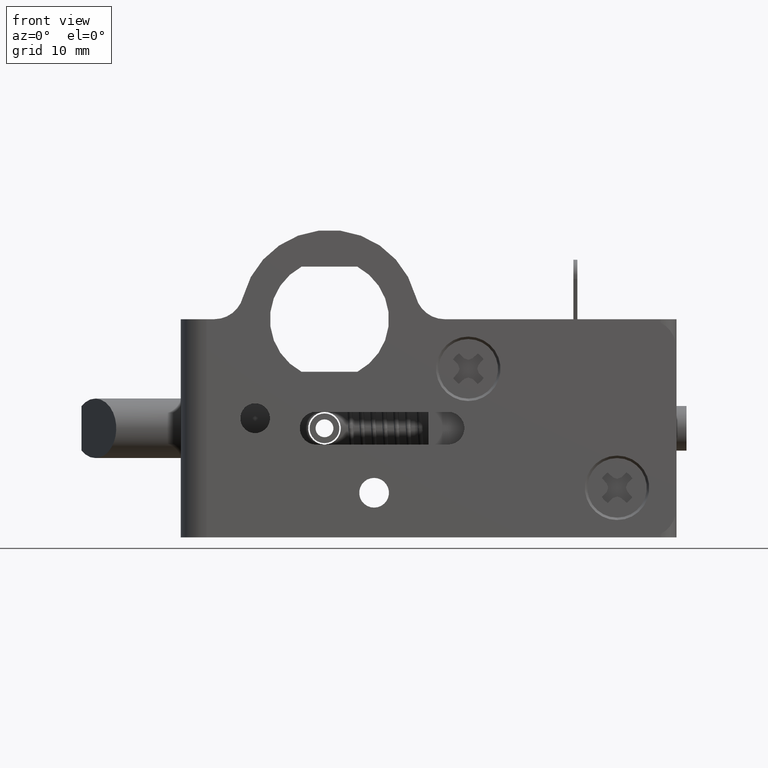
[diagram: clean part render]
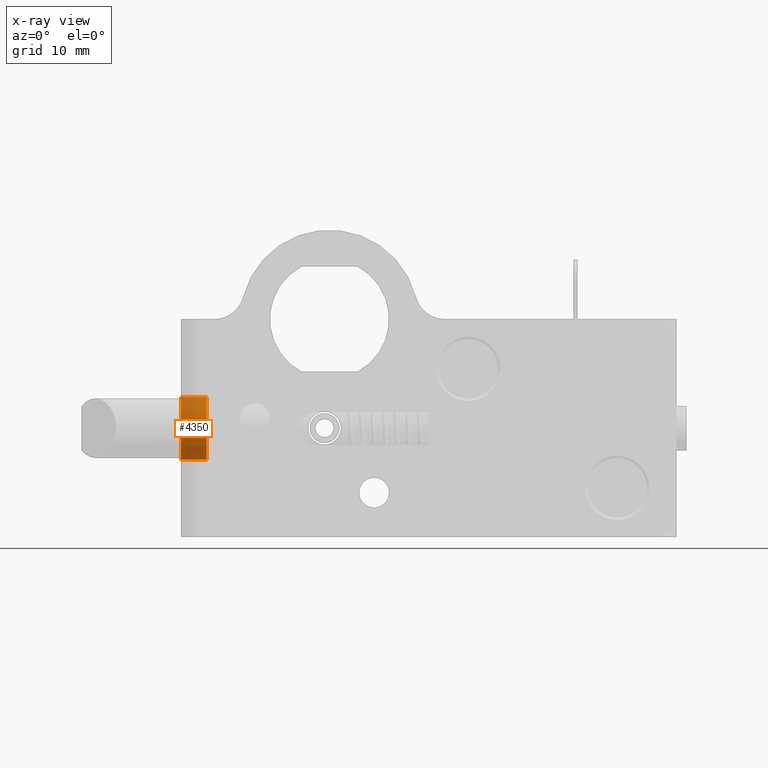
[diagram: x-ray — body ghosted, one internal face saturated and labeled with its STEP entity id]
A machine part, front view, then the same camera in x-ray: the body is ghosted and one INTERNAL B-rep face — a face not visible from any outside direction — is saturated and labeled: STEP entity #4350.
In plain terms, the highlighted cylindrical surface (edge-blend (fillet) strip) has radius 3.15 mm, axis along (-1, 0, 0).
Its self-contained STEP definition (entity closure, byte-faithful):
#576 = DIRECTION ( 'NONE',  ( 0.0000000000000000000, 0.0000000000000000000, 1.000000000000000000 ) ) ;
#725 = CYLINDRICAL_SURFACE ( 'NONE', #5451, 3.149999999999999900 ) ;
#873 = ORIENTED_EDGE ( 'NONE', *, *, #3541, .T. ) ;
#882 = ORIENTED_EDGE ( 'NONE', *, *, #6096, .T. ) ;
#1523 = CARTESIAN_POINT ( 'NONE',  ( -14.99999200000002000, 15.00000000000000000, -7.849999999999999600 ) ) ;
#1693 = DIRECTION ( 'NONE',  ( 0.0000000000000000000, 0.0000000000000000000, 1.000000000000000000 ) ) ;
#2578 = DIRECTION ( 'NONE',  ( -1.000000000000000000, 0.0000000000000000000, 0.0000000000000000000 ) ) ;
#2634 = VERTEX_POINT ( 'NONE', #8452 ) ;
#3242 = CARTESIAN_POINT ( 'NONE',  ( 985.0000079999999800, 15.00000000000000000, -14.14999999999999900 ) ) ;
#3267 = EDGE_LOOP ( 'NONE', ( #9820, #882, #873, #8365 ) ) ;
#3268 = CIRCLE ( 'NONE', #9862, 3.149999999999999900 ) ;
#3278 = CARTESIAN_POINT ( 'NONE',  ( -12.39999200000008100, 15.00000000000000000, -14.14999999999999900 ) ) ;
#3394 = VECTOR ( 'NONE', #8934, 1000.000000000000000 ) ;
#3541 = EDGE_CURVE ( 'NONE', #7963, #3819, #3268, .T. ) ;
#3819 = VERTEX_POINT ( 'NONE', #1523 ) ;
#4350 = ADVANCED_FACE ( 'NONE', ( #7167 ), #725, .F. ) ;
#4603 = CARTESIAN_POINT ( 'NONE',  ( -14.99999200000002000, 15.00000000000000000, -14.14999999999999900 ) ) ;
#5222 = VECTOR ( 'NONE', #9301, 1000.000000000000000 ) ;
#5388 = DIRECTION ( 'NONE',  ( -1.000000000000000000, 0.0000000000000000000, 0.0000000000000000000 ) ) ;
#5390 = AXIS2_PLACEMENT_3D ( 'NONE', #10298, #5388, #576 ) ;
#5451 = AXIS2_PLACEMENT_3D ( 'NONE', #7350, #6503, #1693 ) ;
#5474 = LINE ( 'NONE', #5638, #5222 ) ;
#5638 = CARTESIAN_POINT ( 'NONE',  ( 985.0000079999999800, 15.00000000000000000, -7.849999999999999600 ) ) ;
#6096 = EDGE_CURVE ( 'NONE', #6723, #7963, #9643, .T. ) ;
#6503 = DIRECTION ( 'NONE',  ( -1.000000000000000000, 0.0000000000000000000, 0.0000000000000000000 ) ) ;
#6723 = VERTEX_POINT ( 'NONE', #3278 ) ;
#7167 = FACE_OUTER_BOUND ( 'NONE', #3267, .T. ) ;
#7350 = CARTESIAN_POINT ( 'NONE',  ( 985.0000079999999800, 15.00000000000000000, -11.00000000000000000 ) ) ;
#7428 = CARTESIAN_POINT ( 'NONE',  ( -14.99999200000002000, 15.00000000000000000, -11.00000000000000000 ) ) ;
#7963 = VERTEX_POINT ( 'NONE', #4603 ) ;
#8256 = DIRECTION ( 'NONE',  ( 0.0000000000000000000, 0.0000000000000000000, 1.000000000000000000 ) ) ;
#8365 = ORIENTED_EDGE ( 'NONE', *, *, #9578, .F. ) ;
#8452 = CARTESIAN_POINT ( 'NONE',  ( -12.39999200000008100, 15.00000000000000000, -7.849999999999999600 ) ) ;
#8934 = DIRECTION ( 'NONE',  ( -1.000000000000000000, 0.0000000000000000000, 0.0000000000000000000 ) ) ;
#9301 = DIRECTION ( 'NONE',  ( -1.000000000000000000, 0.0000000000000000000, 0.0000000000000000000 ) ) ;
#9330 = CIRCLE ( 'NONE', #5390, 3.149999999999999900 ) ;
#9578 = EDGE_CURVE ( 'NONE', #2634, #3819, #5474, .T. ) ;
#9643 = LINE ( 'NONE', #3242, #3394 ) ;
#9820 = ORIENTED_EDGE ( 'NONE', *, *, #10207, .F. ) ;
#9862 = AXIS2_PLACEMENT_3D ( 'NONE', #7428, #2578, #8256 ) ;
#10207 = EDGE_CURVE ( 'NONE', #6723, #2634, #9330, .T. ) ;
#10298 = CARTESIAN_POINT ( 'NONE',  ( -12.39999200000008100, 15.00000000000000000, -11.00000000000000000 ) ) ;